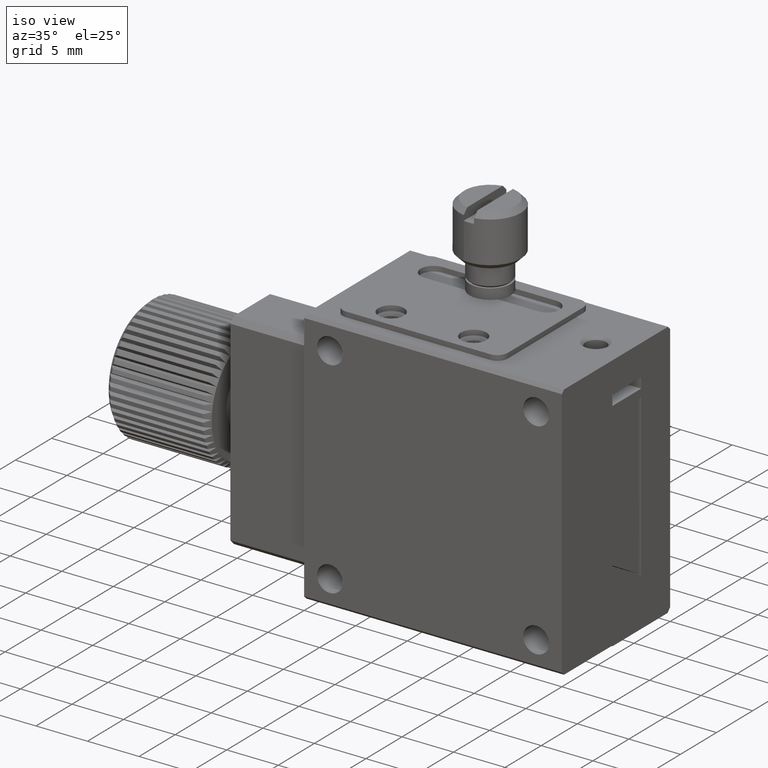
[diagram: clean part render]
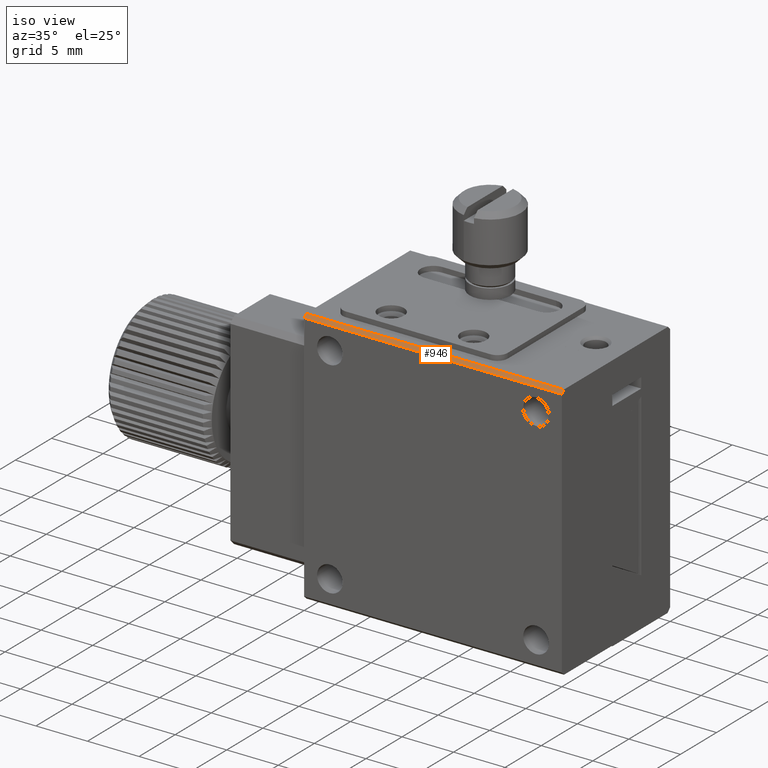
[diagram: same view with one face highlighted and labeled with its STEP entity id]
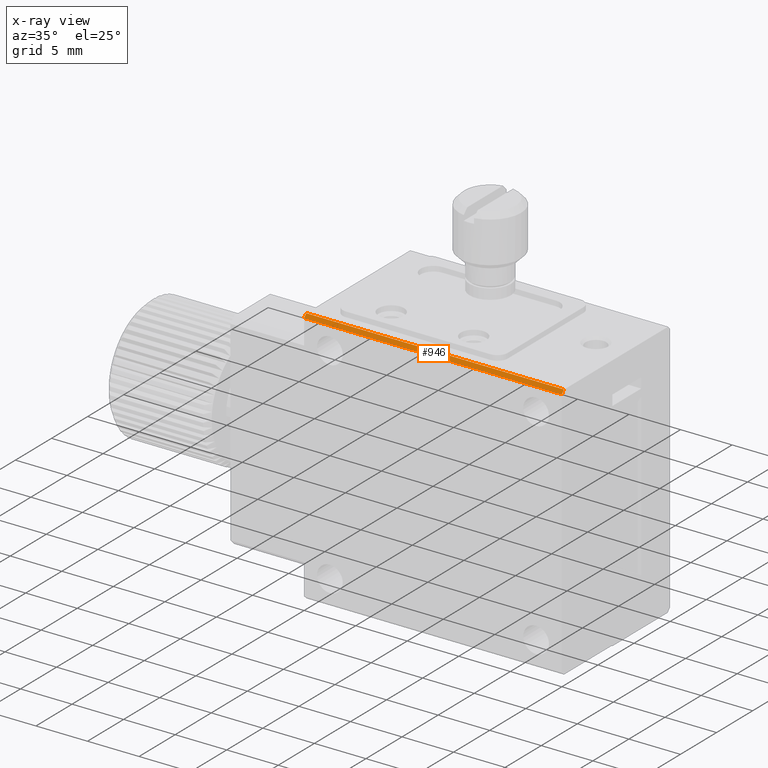
[diagram: x-ray of the same camera — body ghosted, the highlighted face saturated]
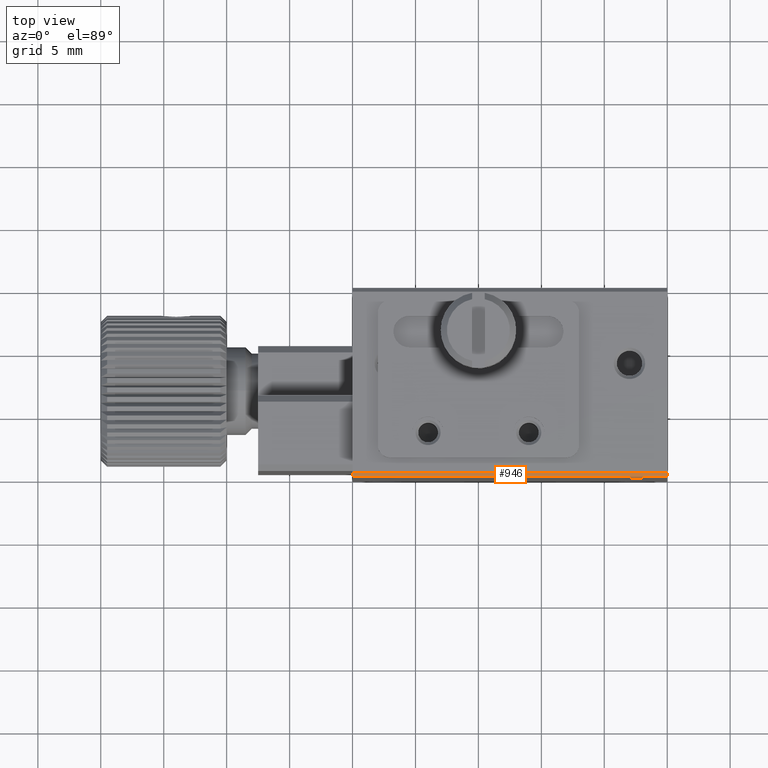
[diagram: same view with one face highlighted and labeled with its STEP entity id]
A machine part, iso view. The second image highlights one B-rep face of the part: STEP entity #946.
The next image is the same camera in x-ray: the body ghosted, the highlighted face saturated — about 0% of this face is hidden behind the body in this view.
A second angle (top view) of the same face is appended — the face is thin or edge-on in the first view.
In plain terms, the highlighted planar face has unit normal (0, 0.7071, -0.7071).
Its self-contained STEP definition (entity closure, byte-faithful):
#126 = LINE ( 'NONE', #8327, #5431 ) ;
#946 = ADVANCED_FACE ( 'NONE', ( #1872 ), #9070, .F. ) ;
#954 = DIRECTION ( 'NONE',  ( 1.000000000000000000, -0.000000000000000000, 0.000000000000000000 ) ) ;
#979 = VECTOR ( 'NONE', #5190, 1000.000000000000114 ) ;
#1872 = FACE_OUTER_BOUND ( 'NONE', #11483, .T. ) ;
#2120 = CARTESIAN_POINT ( 'NONE',  ( 25.00000000000000000, 0.3000000000000109801, -1.836970198721100007E-17 ) ) ;
#3214 = LINE ( 'NONE', #11268, #10090 ) ;
#3398 = ORIENTED_EDGE ( 'NONE', *, *, #5535, .T. ) ;
#3750 = LINE ( 'NONE', #4679, #12357 ) ;
#4192 = LINE ( 'NONE', #2120, #979 ) ;
#4679 = CARTESIAN_POINT ( 'NONE',  ( 25.00000000000000000, 0.3000000000000109801, -1.836970198721100007E-17 ) ) ;
#4871 = VERTEX_POINT ( 'NONE', #7327 ) ;
#4987 = EDGE_CURVE ( 'NONE', #10628, #5917, #3750, .T. ) ;
#5190 = DIRECTION ( 'NONE',  ( 0.000000000000000000, -0.7071067811865474617, -0.7071067811865474617 ) ) ;
#5308 = DIRECTION ( 'NONE',  ( 0.000000000000000000, -0.7071067811865474617, -0.7071067811865474617 ) ) ;
#5431 = VECTOR ( 'NONE', #5308, 1000.000000000000114 ) ;
#5535 = EDGE_CURVE ( 'NONE', #10628, #8367, #126, .T. ) ;
#5808 = DIRECTION ( 'NONE',  ( 1.000000000000000000, -0.000000000000000000, 0.000000000000000000 ) ) ;
#5917 = VERTEX_POINT ( 'NONE', #6156 ) ;
#5985 = AXIS2_PLACEMENT_3D ( 'NONE', #8042, #11930, #10933 ) ;
#6156 = CARTESIAN_POINT ( 'NONE',  ( 25.00000000000000000, 0.3000000000000110911, -8.149119286574543126E-18 ) ) ;
#7327 = CARTESIAN_POINT ( 'NONE',  ( 25.00000000000000000, -1.355252715606880543E-17, -0.3000000000000109801 ) ) ;
#7403 = ORIENTED_EDGE ( 'NONE', *, *, #11438, .T. ) ;
#7594 = EDGE_CURVE ( 'NONE', #5917, #4871, #4192, .T. ) ;
#8042 = CARTESIAN_POINT ( 'NONE',  ( 25.00000000000000000, 0.3000000000000109801, -1.836970198721100007E-17 ) ) ;
#8327 = CARTESIAN_POINT ( 'NONE',  ( 0.000000000000000000, 0.3000000000000109801, -1.836970198721100007E-17 ) ) ;
#8367 = VERTEX_POINT ( 'NONE', #9097 ) ;
#9070 = PLANE ( 'NONE',  #5985 ) ;
#9097 = CARTESIAN_POINT ( 'NONE',  ( -7.806255641895631925E-15, -4.065758146820641628E-17, -0.3000000000000110356 ) ) ;
#9658 = ORIENTED_EDGE ( 'NONE', *, *, #7594, .F. ) ;
#10090 = VECTOR ( 'NONE', #954, 1000.000000000000000 ) ;
#10628 = VERTEX_POINT ( 'NONE', #11368 ) ;
#10933 = DIRECTION ( 'NONE',  ( 0.000000000000000000, 0.7071067811865474617, 0.7071067811865474617 ) ) ;
#11268 = CARTESIAN_POINT ( 'NONE',  ( 25.00000000000000000, 0.000000000000000000, -0.3000000000000109801 ) ) ;
#11368 = CARTESIAN_POINT ( 'NONE',  ( -3.903127820947815962E-15, 0.3000000000000110911, -8.149119286574543126E-18 ) ) ;
#11438 = EDGE_CURVE ( 'NONE', #8367, #4871, #3214, .T. ) ;
#11483 = EDGE_LOOP ( 'NONE', ( #7403, #9658, #12089, #3398 ) ) ;
#11930 = DIRECTION ( 'NONE',  ( 0.000000000000000000, 0.7071067811865475727, -0.7071067811865475727 ) ) ;
#12089 = ORIENTED_EDGE ( 'NONE', *, *, #4987, .F. ) ;
#12357 = VECTOR ( 'NONE', #5808, 1000.000000000000000 ) ;